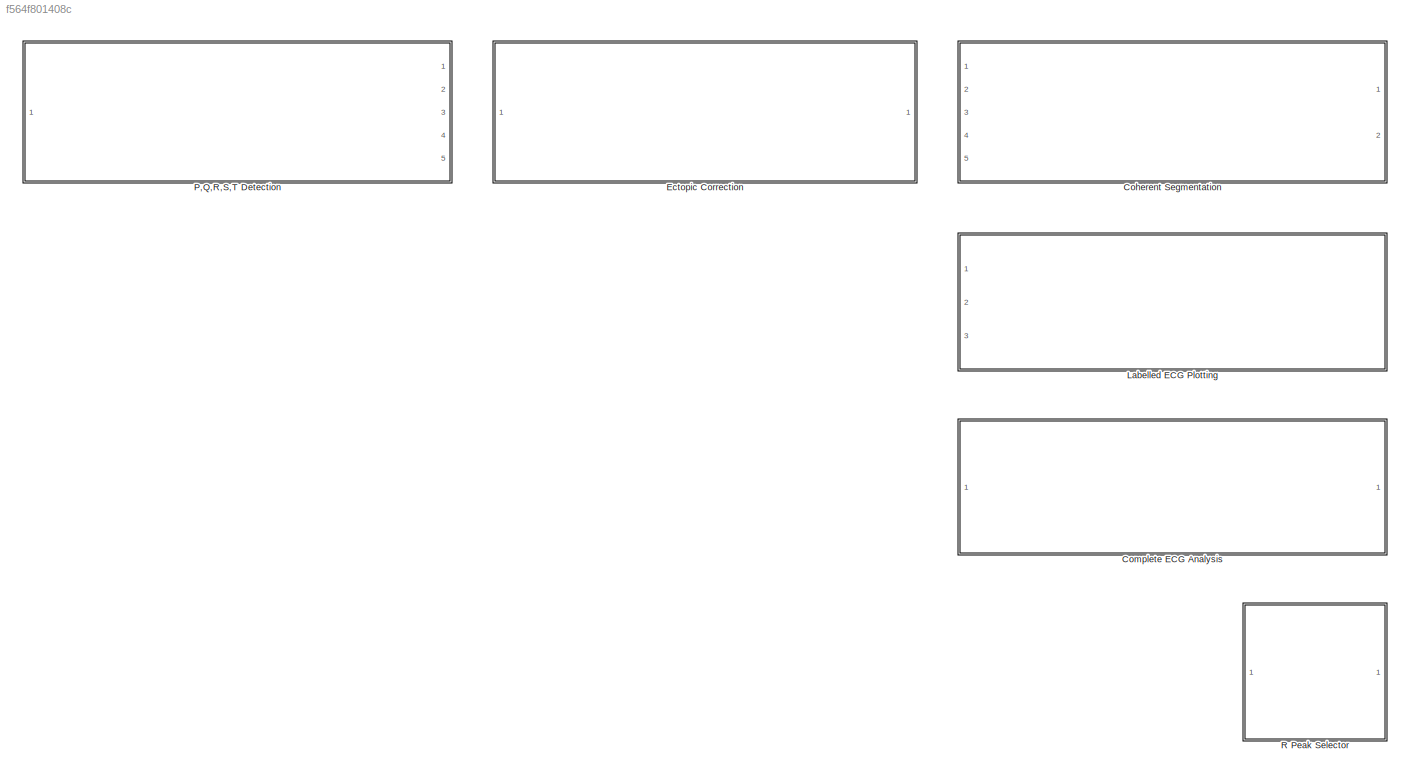
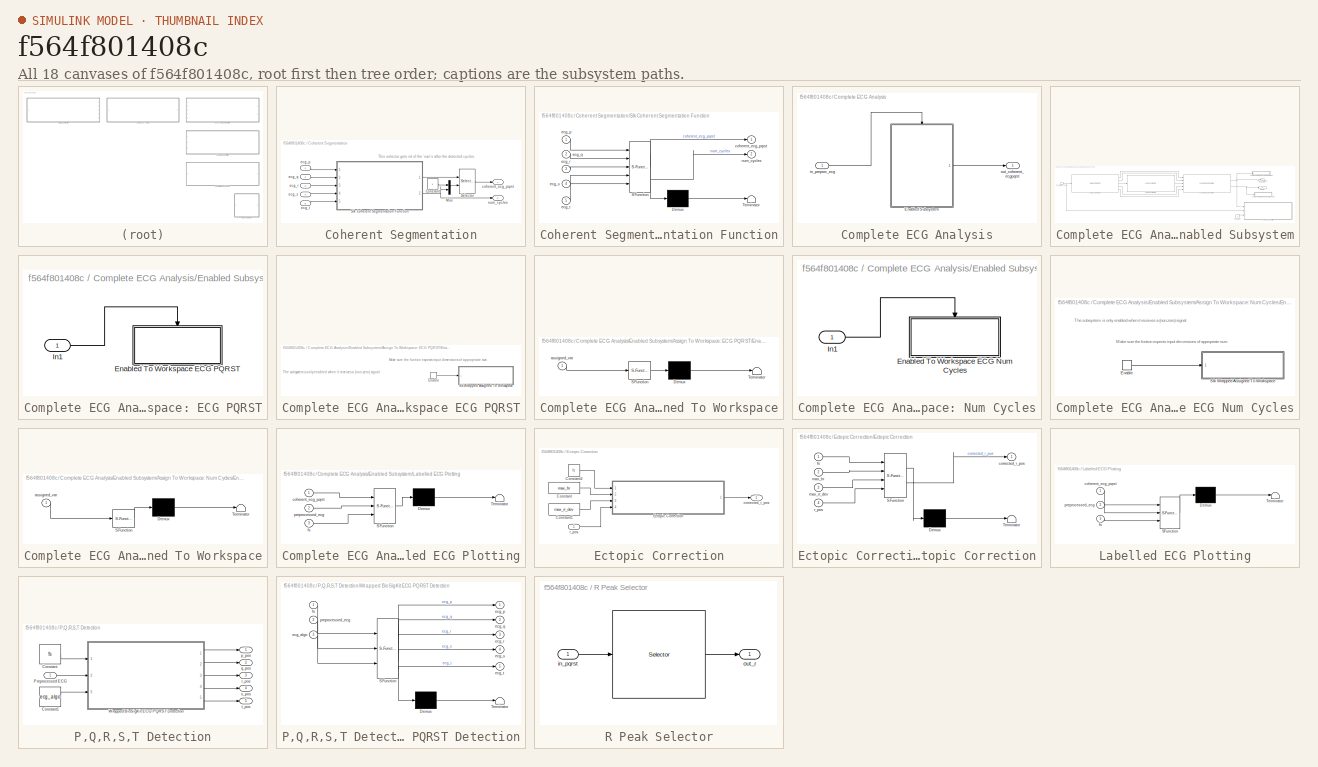
[diagram: thumbnail index - all 18 canvases of the model, root first then tree order]
MODEL slx_f564f801408c
KIND library
CONFIG AbsTol = auto
CONFIG EnableMultiTasking = off
CONFIG FixedStep = auto
CONFIG MaxStep = auto
CONFIG MinStep = auto
CONFIG RelTol = 1e-3
CONFIG SampleTimeConstraint = Unconstrained
CONFIG SolverName = VariableStepAuto
CONFIG StartTime = 0.0
CONFIG StopTime = 10.0
BLOCK [SubSystem] Coherent Segmentation
  Ports = [5, 2]
  RequestExecContextInheritance = off
BLOCK [Constant] Coherent Segmentation/Constant
BLOCK [Mux] Coherent Segmentation/Mux
  DisplayOption = bar
  Inputs = 2
  Ports = [2, 1]
BLOCK [Selector] Coherent Segmentation/Selector
  IndexOptions = Starting and ending indices (port),Index vector (dialog)
  Indices = [1 3],[1 2 3 3 5]
  InputPortWidth = 3
  NumberOfDimensions = 2
  OutputSizes = 1,1
  Ports = [2, 1]
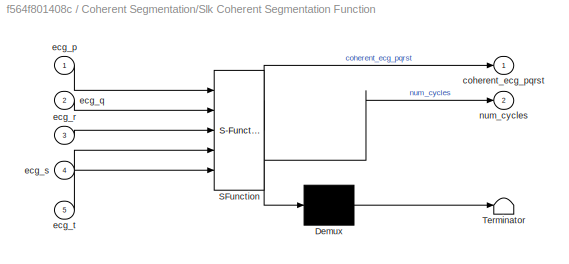
BLOCK [SubSystem] Coherent Segmentation/Slk Coherent Segmentation Function
  ErrorFcn = Stateflow.Translate.translate
  PermitHierarchicalResolution = ExplicitOnly
  Ports = [5, 2]
  RequestExecContextInheritance = off
  SFBlockType = MATLAB Function
  TreatAsAtomicUnit = on
BLOCK [Demux] Coherent Segmentation/Slk Coherent Segmentation Function/ Demux 
  Outputs = 1
  Ports = [1, 1]
BLOCK [S-Function] Coherent Segmentation/Slk Coherent Segmentation Function/ SFunction 
  EnableBusSupport = on
  FunctionName = sf_sfun
  PortCounts = [5 3]
  Ports = [5, 3]
  SFcnIsStateOwnerBlock = off
  SFunctionDeploymentMode = off
  Tag = Stateflow S-Function 1
BLOCK [Terminator] Coherent Segmentation/Slk Coherent Segmentation Function/ Terminator 
BLOCK [Outport] Coherent Segmentation/Slk Coherent Segmentation Function/coherent_ecg_pqrst
BLOCK [Inport] Coherent Segmentation/Slk Coherent Segmentation Function/ecg_p
BLOCK [Inport] Coherent Segmentation/Slk Coherent Segmentation Function/ecg_q
  Port = 2
BLOCK [Inport] Coherent Segmentation/Slk Coherent Segmentation Function/ecg_r
  Port = 3
BLOCK [Inport] Coherent Segmentation/Slk Coherent Segmentation Function/ecg_s
  Port = 4
BLOCK [Inport] Coherent Segmentation/Slk Coherent Segmentation Function/ecg_t
  Port = 5
BLOCK [Outport] Coherent Segmentation/Slk Coherent Segmentation Function/num_cycles
  Port = 2
BLOCK [Outport] Coherent Segmentation/coherent_ecg_pqrst
  NameLocation = right
BLOCK [Inport] Coherent Segmentation/ecg_p
  NameLocation = left
BLOCK [Inport] Coherent Segmentation/ecg_q
  NameLocation = left
  Port = 2
BLOCK [Inport] Coherent Segmentation/ecg_r
  NameLocation = left
  Port = 3
BLOCK [Inport] Coherent Segmentation/ecg_s
  NameLocation = left
  Port = 4
BLOCK [Inport] Coherent Segmentation/ecg_t
  NameLocation = left
  Port = 5
BLOCK [Outport] Coherent Segmentation/num_cycles
  NameLocation = right
  Port = 2
BLOCK [SubSystem] Complete ECG Analysis
  Ports = [1, 1]
  RequestExecContextInheritance = off
BLOCK [SubSystem] Complete ECG Analysis/Enabled Subsystem
  Ports = [0, 1, 1]
  RequestExecContextInheritance = off
  TreatAsAtomicUnit = on
BLOCK [SubSystem] Complete ECG Analysis/Enabled Subsystem/Assign To Workspace: ECG PQRST
  NameLocation = right
  Ports = [1]
  RequestExecContextInheritance = off
BLOCK [SubSystem] Complete ECG Analysis/Enabled Subsystem/Assign To Workspace: ECG PQRST/Enabled To Workspace ECG PQRST
  Ports = [0, 0, 1]
  RequestExecContextInheritance = off
  TreatAsAtomicUnit = on
BLOCK [EnablePort] Complete ECG Analysis/Enabled Subsystem/Assign To Workspace: ECG PQRST/Enabled To Workspace ECG PQRST/Enable
  Ports = [0, 1]
  ShowOutputPort = on
BLOCK [SubSystem] Complete ECG Analysis/Enabled Subsystem/Assign To Workspace: ECG PQRST/Enabled To Workspace ECG PQRST/Slk Wrapped Assigned To Workspace
  ErrorFcn = Stateflow.Translate.translate
  PermitHierarchicalResolution = ExplicitOnly
  Ports = [1]
  RequestExecContextInheritance = off
  SFBlockType = MATLAB Function
  TreatAsAtomicUnit = on
BLOCK [Demux] Complete ECG Analysis/Enabled Subsystem/Assign To Workspace: ECG PQRST/Enabled To Workspace ECG PQRST/Slk Wrapped Assigned To Workspace/ Demux 
  Outputs = 1
  Ports = [1, 1]
BLOCK [S-Function] Complete ECG Analysis/Enabled Subsystem/Assign To Workspace: ECG PQRST/Enabled To Workspace ECG PQRST/Slk Wrapped Assigned To Workspace/ SFunction 
  EnableBusSupport = off
  FunctionName = sf_sfun
  PortCounts = [1 1]
  Ports = [1, 1]
  SFcnIsStateOwnerBlock = off
  SFunctionDeploymentMode = off
  Tag = Stateflow S-Function 4
BLOCK [Terminator] Complete ECG Analysis/Enabled Subsystem/Assign To Workspace: ECG PQRST/Enabled To Workspace ECG PQRST/Slk Wrapped Assigned To Workspace/ Terminator 
BLOCK [Inport] Complete ECG Analysis/Enabled Subsystem/Assign To Workspace: ECG PQRST/Enabled To Workspace ECG PQRST/Slk Wrapped Assigned To Workspace/assigned_var
BLOCK [Inport] Complete ECG Analysis/Enabled Subsystem/Assign To Workspace: ECG PQRST/In1
BLOCK [SubSystem] Complete ECG Analysis/Enabled Subsystem/Assign To Workspace: Num Cycles
  NameLocation = right
  Ports = [1]
  RequestExecContextInheritance = off
BLOCK [SubSystem] Complete ECG Analysis/Enabled Subsystem/Assign To Workspace: Num Cycles/Enabled To Workspace ECG Num Cycles
  Ports = [0, 0, 1]
  RequestExecContextInheritance = off
  TreatAsAtomicUnit = on
BLOCK [EnablePort] Complete ECG Analysis/Enabled Subsystem/Assign To Workspace: Num Cycles/Enabled To Workspace ECG Num Cycles/Enable
  Ports = [0, 1]
  ShowOutputPort = on
BLOCK [SubSystem] Complete ECG Analysis/Enabled Subsystem/Assign To Workspace: Num Cycles/Enabled To Workspace ECG Num Cycles/Slk Wrapped Assigned To Workspace
  ErrorFcn = Stateflow.Translate.translate
  PermitHierarchicalResolution = ExplicitOnly
  Ports = [1]
  RequestExecContextInheritance = off
  SFBlockType = MATLAB Function
  TreatAsAtomicUnit = on
BLOCK [Demux] Complete ECG Analysis/Enabled Subsystem/Assign To Workspace: Num Cycles/Enabled To Workspace ECG Num Cycles/Slk Wrapped Assigned To Workspace/ Demux 
  Outputs = 1
  Ports = [1, 1]
BLOCK [S-Function] Complete ECG Analysis/Enabled Subsystem/Assign To Workspace: Num Cycles/Enabled To Workspace ECG Num Cycles/Slk Wrapped Assigned To Workspace/ SFunction 
  EnableBusSupport = on
  FunctionName = sf_sfun
  PortCounts = [1 1]
  Ports = [1, 1]
  SFcnIsStateOwnerBlock = off
  SFunctionDeploymentMode = off
  Tag = Stateflow S-Function 145
BLOCK [Terminator] Complete ECG Analysis/Enabled Subsystem/Assign To Workspace: Num Cycles/Enabled To Workspace ECG Num Cycles/Slk Wrapped Assigned To Workspace/ Terminator 
BLOCK [Inport] Complete ECG Analysis/Enabled Subsystem/Assign To Workspace: Num Cycles/Enabled To Workspace ECG Num Cycles/Slk Wrapped Assigned To Workspace/assigned_var
BLOCK [Inport] Complete ECG Analysis/Enabled Subsystem/Assign To Workspace: Num Cycles/In1
BLOCK [Reference] Complete ECG Analysis/Enabled Subsystem/Coherent Segmentation  REF=$bdroot/Coherent Segmentation
  Ports = [5, 2]
  SourceBlock = $bdroot/Coherent Segmentation
BLOCK [Constant] Complete ECG Analysis/Enabled Subsystem/Constant
  Value = fs
BLOCK [Display] Complete ECG Analysis/Enabled Subsystem/Display
  Decimation = 1
  Ports = [1]
BLOCK [Reference] Complete ECG Analysis/Enabled Subsystem/Ectopic Correction  REF=$bdroot/Ectopic Correction
  Ports = [1, 1]
  SourceBlock = $bdroot/Ectopic Correction
BLOCK [SubSystem] Complete ECG Analysis/Enabled Subsystem/Labelled ECG Plotting
  ErrorFcn = Stateflow.Translate.translate
  PermitHierarchicalResolution = ExplicitOnly
  Ports = [3]
  RequestExecContextInheritance = off
  SFBlockType = MATLAB Function
  TreatAsAtomicUnit = on
BLOCK [Demux] Complete ECG Analysis/Enabled Subsystem/Labelled ECG Plotting/ Demux 
  Outputs = 1
  Ports = [1, 1]
BLOCK [S-Function] Complete ECG Analysis/Enabled Subsystem/Labelled ECG Plotting/ SFunction 
  EnableBusSupport = off
  FunctionName = sf_sfun
  PortCounts = [3 1]
  Ports = [3, 1]
  SFcnIsStateOwnerBlock = off
  SFunctionDeploymentMode = off
  Tag = Stateflow S-Function 3
BLOCK [Terminator] Complete ECG Analysis/Enabled Subsystem/Labelled ECG Plotting/ Terminator 
BLOCK [Inport] Complete ECG Analysis/Enabled Subsystem/Labelled ECG Plotting/coherent_ecg_pqrst
BLOCK [Inport] Complete ECG Analysis/Enabled Subsystem/Labelled ECG Plotting/fs
  Port = 3
BLOCK [Inport] Complete ECG Analysis/Enabled Subsystem/Labelled ECG Plotting/preprocessed_ecg
  Port = 2
BLOCK [Reference] Complete ECG Analysis/Enabled Subsystem/P,Q,R,S,T Detection  REF=$bdroot/P,Q,R,S,T Detection
  Ports = [1, 5]
  SourceBlock = $bdroot/P,Q,R,S,T Detection
BLOCK [EnablePort] Complete ECG Analysis/Enabled Subsystem/in_preproc_ecg
  Ports = [0, 1]
  ShowOutputPort = on
BLOCK [Outport] Complete ECG Analysis/Enabled Subsystem/out_coherent_ecgpqrst
BLOCK [Inport] Complete ECG Analysis/in_preproc_ecg
BLOCK [Outport] Complete ECG Analysis/out_coherent_ecgpqrst
  NameLocation = right
BLOCK [SubSystem] Ectopic Correction
  Ports = [1, 1]
  RequestExecContextInheritance = off
BLOCK [Constant] Ectopic Correction/Constant
  Value = max_hr
BLOCK [Constant] Ectopic Correction/Constant1
  Value = max_rr_dev
BLOCK [Constant] Ectopic Correction/Constant2
  Value = fs
BLOCK [SubSystem] Ectopic Correction/Ectopic Correction
  ErrorFcn = Stateflow.Translate.translate
  PermitHierarchicalResolution = ExplicitOnly
  Ports = [4, 1]
  RequestExecContextInheritance = off
  SFBlockType = MATLAB Function
  TreatAsAtomicUnit = on
BLOCK [Demux] Ectopic Correction/Ectopic Correction/ Demux 
  Outputs = 1
  Ports = [1, 1]
BLOCK [S-Function] Ectopic Correction/Ectopic Correction/ SFunction 
  EnableBusSupport = off
  FunctionName = sf_sfun
  PortCounts = [4 2]
  Ports = [4, 2]
  SFcnIsStateOwnerBlock = off
  SFunctionDeploymentMode = off
  Tag = Stateflow S-Function 9
BLOCK [Terminator] Ectopic Correction/Ectopic Correction/ Terminator 
BLOCK [Outport] Ectopic Correction/Ectopic Correction/corrected_r_pos
BLOCK [Inport] Ectopic Correction/Ectopic Correction/fs
BLOCK [Inport] Ectopic Correction/Ectopic Correction/max_hr
  Port = 2
BLOCK [Inport] Ectopic Correction/Ectopic Correction/max_rr_dev
  Port = 3
BLOCK [Inport] Ectopic Correction/Ectopic Correction/r_pos
  Port = 4
BLOCK [Outport] Ectopic Correction/corrected_r_pos
  NameLocation = right
BLOCK [Inport] Ectopic Correction/r_pos
BLOCK [SubSystem] Labelled ECG Plotting
  ErrorFcn = Stateflow.Translate.translate
  PermitHierarchicalResolution = ExplicitOnly
  Ports = [3]
  RequestExecContextInheritance = off
  SFBlockType = MATLAB Function
  TreatAsAtomicUnit = on
BLOCK [Demux] Labelled ECG Plotting/ Demux 
  Outputs = 1
  Ports = [1, 1]
BLOCK [S-Function] Labelled ECG Plotting/ SFunction 
  EnableBusSupport = on
  FunctionName = sf_sfun
  PortCounts = [3 1]
  Ports = [3, 1]
  SFcnIsStateOwnerBlock = off
  SFunctionDeploymentMode = off
  Tag = Stateflow S-Function 2
BLOCK [Terminator] Labelled ECG Plotting/ Terminator 
BLOCK [Inport] Labelled ECG Plotting/coherent_ecg_pqrst
BLOCK [Inport] Labelled ECG Plotting/fs
  Port = 3
BLOCK [Inport] Labelled ECG Plotting/preprocessed_ecg
  Port = 2
BLOCK [SubSystem] P,Q,R,S,T Detection
  Ports = [1, 5]
  RequestExecContextInheritance = off
BLOCK [Constant] P,Q,R,S,T Detection/Constant
  Value = fs
BLOCK [Constant] P,Q,R,S,T Detection/Constant1
  Value = ecg_algo
BLOCK [Inport] P,Q,R,S,T Detection/Preprocessed ECG
  NameLocation = left
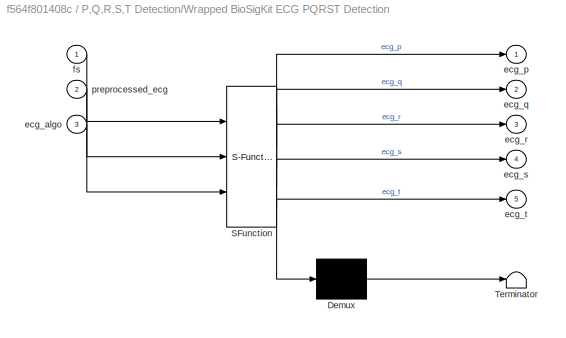
BLOCK [SubSystem] P,Q,R,S,T Detection/Wrapped BioSigKit ECG PQRST Detection
  ErrorFcn = Stateflow.Translate.translate
  PermitHierarchicalResolution = ExplicitOnly
  Ports = [3, 5]
  RequestExecContextInheritance = off
  SFBlockType = MATLAB Function
  TreatAsAtomicUnit = on
BLOCK [Demux] P,Q,R,S,T Detection/Wrapped BioSigKit ECG PQRST Detection/ Demux 
  Outputs = 1
  Ports = [1, 1]
BLOCK [S-Function] P,Q,R,S,T Detection/Wrapped BioSigKit ECG PQRST Detection/ SFunction 
  EnableBusSupport = on
  FunctionName = sf_sfun
  PortCounts = [3 6]
  Ports = [3, 6]
  SFcnIsStateOwnerBlock = off
  SFunctionDeploymentMode = off
  Tag = Stateflow S-Function 6
BLOCK [Terminator] P,Q,R,S,T Detection/Wrapped BioSigKit ECG PQRST Detection/ Terminator 
BLOCK [Inport] P,Q,R,S,T Detection/Wrapped BioSigKit ECG PQRST Detection/ecg_algo
  Port = 3
BLOCK [Outport] P,Q,R,S,T Detection/Wrapped BioSigKit ECG PQRST Detection/ecg_p
BLOCK [Outport] P,Q,R,S,T Detection/Wrapped BioSigKit ECG PQRST Detection/ecg_q
  Port = 2
BLOCK [Outport] P,Q,R,S,T Detection/Wrapped BioSigKit ECG PQRST Detection/ecg_r
  Port = 3
BLOCK [Outport] P,Q,R,S,T Detection/Wrapped BioSigKit ECG PQRST Detection/ecg_s
  Port = 4
BLOCK [Outport] P,Q,R,S,T Detection/Wrapped BioSigKit ECG PQRST Detection/ecg_t
  Port = 5
BLOCK [Inport] P,Q,R,S,T Detection/Wrapped BioSigKit ECG PQRST Detection/fs
BLOCK [Inport] P,Q,R,S,T Detection/Wrapped BioSigKit ECG PQRST Detection/preprocessed_ecg
  Port = 2
BLOCK [Outport] P,Q,R,S,T Detection/p_pos
  NameLocation = right
  VarSizeSig = Yes
BLOCK [Outport] P,Q,R,S,T Detection/q_pos
  NameLocation = right
  Port = 2
  VarSizeSig = Yes
BLOCK [Outport] P,Q,R,S,T Detection/r_pos
  NameLocation = right
  Port = 3
  VarSizeSig = Yes
BLOCK [Outport] P,Q,R,S,T Detection/s_pos
  NameLocation = right
  Port = 4
  VarSizeSig = Yes
BLOCK [Outport] P,Q,R,S,T Detection/t_pos
  NameLocation = right
  Port = 5
  VarSizeSig = Yes
BLOCK [SubSystem] R Peak Selector
  Ports = [1, 1]
  RequestExecContextInheritance = off
BLOCK [Selector] R Peak Selector/ 
  IndexOptions = Select all,Index vector (dialog)
  Indices = [1 3],3
  InputPortWidth = 3
  NumberOfDimensions = 2
  OutputSizes = 1,1
  Ports = [1, 1]
BLOCK [Inport] R Peak Selector/in_pqrst
  NameLocation = left
BLOCK [Outport] R Peak Selector/out_r
  NameLocation = right
ANNOTATION Coherent Segmentation: This selector gets rid of the 'nan's after the detected cycles.
ANNOTATION Complete ECG Analysis/Enabled Subsystem/Assign To Workspace: ECG PQRST/Enabled To Workspace ECG PQRST: Make sure the funtion expects input dimensions of appropriate size.
ANNOTATION Complete ECG Analysis/Enabled Subsystem/Assign To Workspace: ECG PQRST/Enabled To Workspace ECG PQRST: The subsystem is only enabled when it receives a (non-zero) signal
ANNOTATION Complete ECG Analysis/Enabled Subsystem/Assign To Workspace: Num Cycles/Enabled To Workspace ECG Num Cycles: Make sure the funtion expects input dimensions of appropriate size.
ANNOTATION Complete ECG Analysis/Enabled Subsystem/Assign To Workspace: Num Cycles/Enabled To Workspace ECG Num Cycles: The subsystem is only enabled when it receives a (non-zero) signal
LINE Coherent Segmentation/Constant:1 -> Coherent Segmentation/Mux:1
LINE Coherent Segmentation/Mux:1 -> Coherent Segmentation/Selector:2
LINE Coherent Segmentation/Selector:1 -> Coherent Segmentation/coherent_ecg_pqrst:1
LINE Coherent Segmentation/Slk Coherent Segmentation Function:1 -> Coherent Segmentation/Selector:1
NET Coherent Segmentation/Slk Coherent Segmentation Function:2 -> Coherent Segmentation/Mux:2, Coherent Segmentation/num_cycles:1
LINE Coherent Segmentation/ecg_p:1 -> Coherent Segmentation/Slk Coherent Segmentation Function:1
LINE Coherent Segmentation/ecg_q:1 -> Coherent Segmentation/Slk Coherent Segmentation Function:2
LINE Coherent Segmentation/ecg_r:1 -> Coherent Segmentation/Slk Coherent Segmentation Function:3
LINE Coherent Segmentation/ecg_s:1 -> Coherent Segmentation/Slk Coherent Segmentation Function:4
LINE Coherent Segmentation/ecg_t:1 -> Coherent Segmentation/Slk Coherent Segmentation Function:5
LINE Complete ECG Analysis/Enabled Subsystem/Assign To Workspace: ECG PQRST/Enabled To Workspace ECG PQRST/Enable:1 -> Complete ECG Analysis/Enabled Subsystem/Assign To Workspace: ECG PQRST/Enabled To Workspace ECG PQRST/Slk Wrapped Assigned To Workspace:1
LINE Complete ECG Analysis/Enabled Subsystem/Assign To Workspace: ECG PQRST/In1:1 -> Complete ECG Analysis/Enabled Subsystem/Assign To Workspace: ECG PQRST/Enabled To Workspace ECG PQRST:enable
LINE Complete ECG Analysis/Enabled Subsystem/Assign To Workspace: Num Cycles/Enabled To Workspace ECG Num Cycles/Enable:1 -> Complete ECG Analysis/Enabled Subsystem/Assign To Workspace: Num Cycles/Enabled To Workspace ECG Num Cycles/Slk Wrapped Assigned To Workspace:1
LINE Complete ECG Analysis/Enabled Subsystem/Assign To Workspace: Num Cycles/In1:1 -> Complete ECG Analysis/Enabled Subsystem/Assign To Workspace: Num Cycles/Enabled To Workspace ECG Num Cycles:enable
NET Complete ECG Analysis/Enabled Subsystem/Coherent Segmentation:1 -> Complete ECG Analysis/Enabled Subsystem/Assign To Workspace: ECG PQRST:1, Complete ECG Analysis/Enabled Subsystem/Labelled ECG Plotting:1, Complete ECG Analysis/Enabled Subsystem/out_coherent_ecgpqrst:1
NET Complete ECG Analysis/Enabled Subsystem/Coherent Segmentation:2 -> Complete ECG Analysis/Enabled Subsystem/Assign To Workspace: Num Cycles:1, Complete ECG Analysis/Enabled Subsystem/Display:1
LINE Complete ECG Analysis/Enabled Subsystem/Constant:1 -> Complete ECG Analysis/Enabled Subsystem/Labelled ECG Plotting:3
LINE Complete ECG Analysis/Enabled Subsystem/Ectopic Correction:1 -> Complete ECG Analysis/Enabled Subsystem/Coherent Segmentation:3
LINE Complete ECG Analysis/Enabled Subsystem/P,Q,R,S,T Detection:1 -> Complete ECG Analysis/Enabled Subsystem/Coherent Segmentation:1
LINE Complete ECG Analysis/Enabled Subsystem/P,Q,R,S,T Detection:2 -> Complete ECG Analysis/Enabled Subsystem/Coherent Segmentation:2
LINE Complete ECG Analysis/Enabled Subsystem/P,Q,R,S,T Detection:3 -> Complete ECG Analysis/Enabled Subsystem/Ectopic Correction:1
LINE Complete ECG Analysis/Enabled Subsystem/P,Q,R,S,T Detection:4 -> Complete ECG Analysis/Enabled Subsystem/Coherent Segmentation:4
LINE Complete ECG Analysis/Enabled Subsystem/P,Q,R,S,T Detection:5 -> Complete ECG Analysis/Enabled Subsystem/Coherent Segmentation:5
NET Complete ECG Analysis/Enabled Subsystem/in_preproc_ecg:1 -> Complete ECG Analysis/Enabled Subsystem/Labelled ECG Plotting:2, Complete ECG Analysis/Enabled Subsystem/P,Q,R,S,T Detection:1
LINE Complete ECG Analysis/Enabled Subsystem:1 -> Complete ECG Analysis/out_coherent_ecgpqrst:1
LINE Complete ECG Analysis/in_preproc_ecg:1 -> Complete ECG Analysis/Enabled Subsystem:enable
LINE Ectopic Correction/Constant1:1 -> Ectopic Correction/Ectopic Correction:3
LINE Ectopic Correction/Constant2:1 -> Ectopic Correction/Ectopic Correction:1
LINE Ectopic Correction/Constant:1 -> Ectopic Correction/Ectopic Correction:2
LINE Ectopic Correction/Ectopic Correction:1 -> Ectopic Correction/corrected_r_pos:1
LINE Ectopic Correction/r_pos:1 -> Ectopic Correction/Ectopic Correction:4
LINE P,Q,R,S,T Detection/Constant1:1 -> P,Q,R,S,T Detection/Wrapped BioSigKit ECG PQRST Detection:3
LINE P,Q,R,S,T Detection/Constant:1 -> P,Q,R,S,T Detection/Wrapped BioSigKit ECG PQRST Detection:1
LINE P,Q,R,S,T Detection/Preprocessed ECG:1 -> P,Q,R,S,T Detection/Wrapped BioSigKit ECG PQRST Detection:2
LINE P,Q,R,S,T Detection/Wrapped BioSigKit ECG PQRST Detection:1 -> P,Q,R,S,T Detection/p_pos:1
LINE P,Q,R,S,T Detection/Wrapped BioSigKit ECG PQRST Detection:2 -> P,Q,R,S,T Detection/q_pos:1
LINE P,Q,R,S,T Detection/Wrapped BioSigKit ECG PQRST Detection:3 -> P,Q,R,S,T Detection/r_pos:1
LINE P,Q,R,S,T Detection/Wrapped BioSigKit ECG PQRST Detection:4 -> P,Q,R,S,T Detection/s_pos:1
LINE P,Q,R,S,T Detection/Wrapped BioSigKit ECG PQRST Detection:5 -> P,Q,R,S,T Detection/t_pos:1
LINE R Peak Selector/ :1 -> R Peak Selector/out_r:1
LINE R Peak Selector/in_pqrst:1 -> R Peak Selector/ :1
note: NET lines group one-source signal fan-out (src -> all destinations, sorted); 1:1 wires keep LINE
CHART Coherent Segmentation/Slk Coherent Segmentation Function states=1 transitions=1
  STATE_LABEL 'eML_blk_kernel()'
  STATE_LABEL "SCRIPT:\nfunction [coherent_ecg_pqrst, num_cycles] = slk_coherent_segmentation(ecg_p, ecg_q, ecg_r, ecg_s, ecg_t)\n% Function to associate the detected PQRST peaks to each other in a\n% coherent way. The function will produce an output 'coherent_ecg_pqrst' of\n% size [num_cycles x 5]. The 5 corresponds to the 5 fiducial points (PQRST\n% peaks). num_cycles is the number of detected R peaks (heart cycles...<+3608ch>"
CHART Labelled ECG Plotting states=1 transitions=1
  STATE_LABEL 'eML_blk_kernel()'
  STATE_LABEL "SCRIPT:\nfunction slk_wrapped_plotting_ecg_pqrst(coherent_ecg_pqrst, preprocessed_ecg, fs)\n    \ncoder.extrinsic('plotting_ecg_pqrst');\n\nif coherent_ecg_pqrst(:,3) % Only go into the function if a valid ecg R peak sequence is passed to it.\n    plotting_ecg_pqrst(coherent_ecg_pqrst, preprocessed_ecg, fs)\nend\n\nend\n\n\n\n\n"
CHART Complete ECG Analysis/Enabled
Subsystem/Labelled ECG Plotting states=1 transitions=1
  STATE_LABEL 'eML_blk_kernel()'
  STATE_LABEL "SCRIPT:\nfunction slk_wrapped_plotting_ecg_pqrst(coherent_ecg_pqrst, preprocessed_ecg, fs)\n    \ncoder.extrinsic('plotting_ecg_pqrst');\n\nif coherent_ecg_pqrst(:,3) % Only go into the function if a valid ecg R peak sequence is passed to it.\n    plotting_ecg_pqrst(coherent_ecg_pqrst, preprocessed_ecg, fs)\nend\n\nend\n\n\n\n\n"
CHART Complete ECG Analysis/Enabled
Subsystem/Assign To Workspace: ECG PQRST/Enabled To Workspace ECG PQRST/Slk Wrapped Assigned To Workspace states=1 transitions=1
  STATE_LABEL 'eML_blk_kernel()'
  STATE_LABEL "SCRIPT:\nfunction slk_wrapped_assign_to_workspace(assigned_var)\n% Wrapped simulink function to assign an input 'assigned_var' to the base workspace.\n\ncoder.extrinsic('assign_num_cycles_to_workspace');\n\nif assigned_var % Only go into the function if a valid variable is passed to it.\n    assign_num_cycles_to_workspace(assigned_var)\nend\n\nend\n\n\n\n\n"
CHART P,Q,R,S,T Detection/Wrapped BioSigKit ECG PQRST Detection states=1 transitions=1
  STATE_LABEL 'eML_blk_kernel()'
  STATE_LABEL 'SCRIPT:\nfunction [ecg_p, ecg_q, ecg_r, ecg_s, ecg_t] = slk_wrapped_BioSigKit_ECG_Detection(fs, preprocessed_ecg, ecg_algo)\n\n% This function is split in two parts out of necessity - (Simulink is kind of dumb).\n% The first part counts how many detected P,Q,R,S, and T waves there are according to the BioSigKit method.\n% With these numbers we can pre-initialize the size of the vectors holding the samp...<+1652ch>'
CHART Ectopic Correction/Ectopic Correction states=1 transitions=1
  STATE_LABEL 'eML_blk_kernel()'
  STATE_LABEL 'SCRIPT:\nfunction corrected_r_pos = slk_ectopic_correction(fs, max_hr, max_rr_dev, r_pos)\n\nif r_pos % Only run if a series of R peaks are passed.\n    \n    corrected_r_pos = r_pos;\n    \n    rr = diff(r_pos); % RR interval calculation.\n    \n    %% Part 1 - Identification of Cycles over the Maximum Heart Rate.\n    max_rr_sec = 1/(max_hr/60); % In sec.\n    max_rr_samples = max_rr_sec*fs; % In samples.\n...<+1511ch>'
CHART Complete ECG Analysis/Enabled
Subsystem/Assign To Workspace: Num Cycles/Enabled To Workspace ECG
Num Cycles/Slk Wrapped Assigned To Workspace states=1 transitions=1
  STATE_LABEL 'eML_blk_kernel()'
  STATE_LABEL "SCRIPT:\nfunction slk_wrapped_assign_to_workspace(assigned_var)\n% Wrapped simulink function to assign an input 'assigned_var' to the base workspace.\n\ncoder.extrinsic('assign_num_cycles_to_workspace');\n\nif assigned_var % Only go into the function if a valid variable is passed to it.\n    assign_num_cycles_to_workspace(assigned_var)\nend\n\nend\n\n\n\n\n"
CHART  states=0 transitions=0
CHART  states=0 transitions=0
CHART  states=0 transitions=0
CHART  states=0 transitions=0
CHART  states=0 transitions=0
CHART  states=0 transitions=0
CHART  states=0 transitions=0
